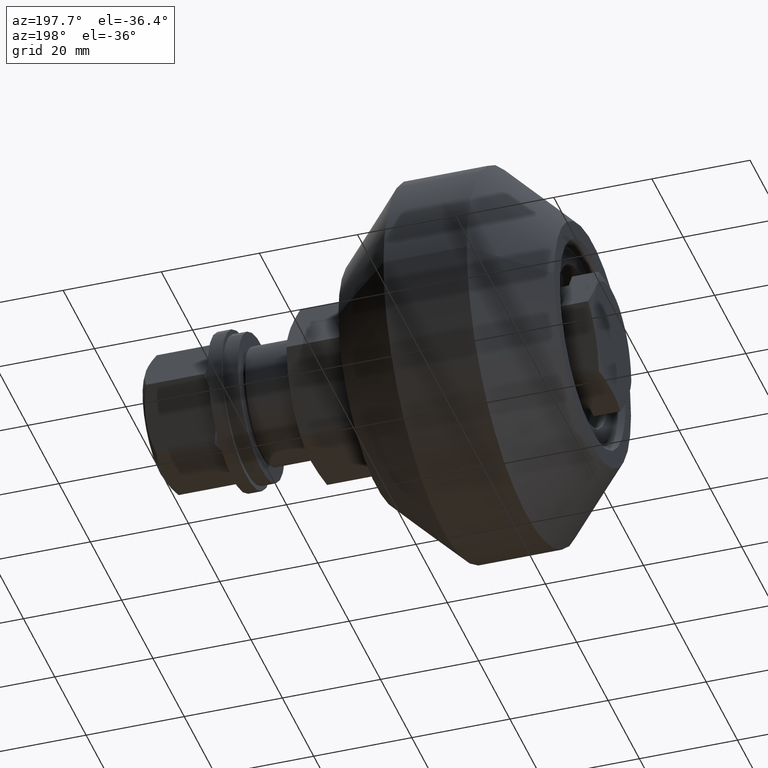
[diagram: clean part render]
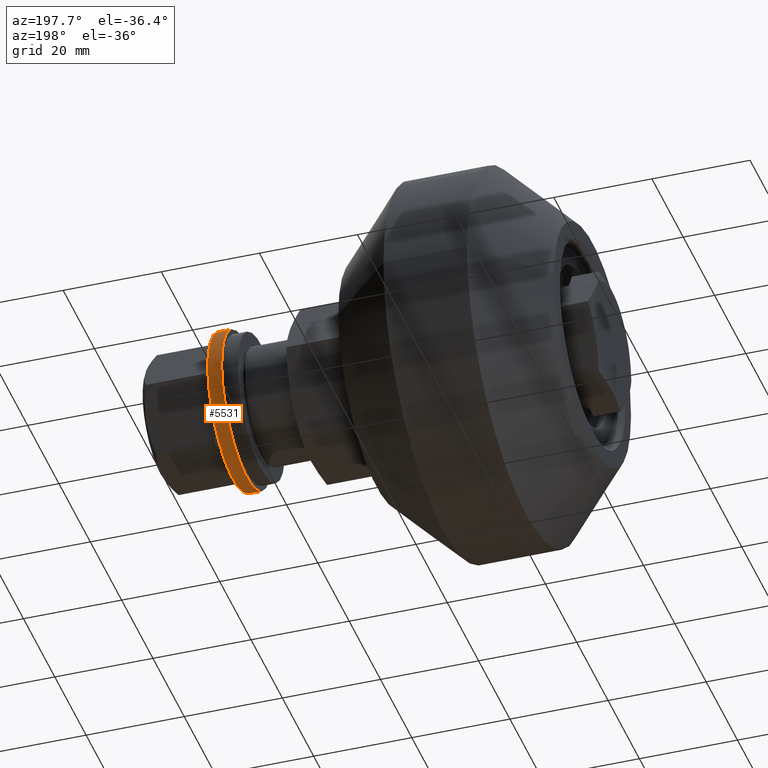
[diagram: same view with one face highlighted and labeled with its STEP entity id]
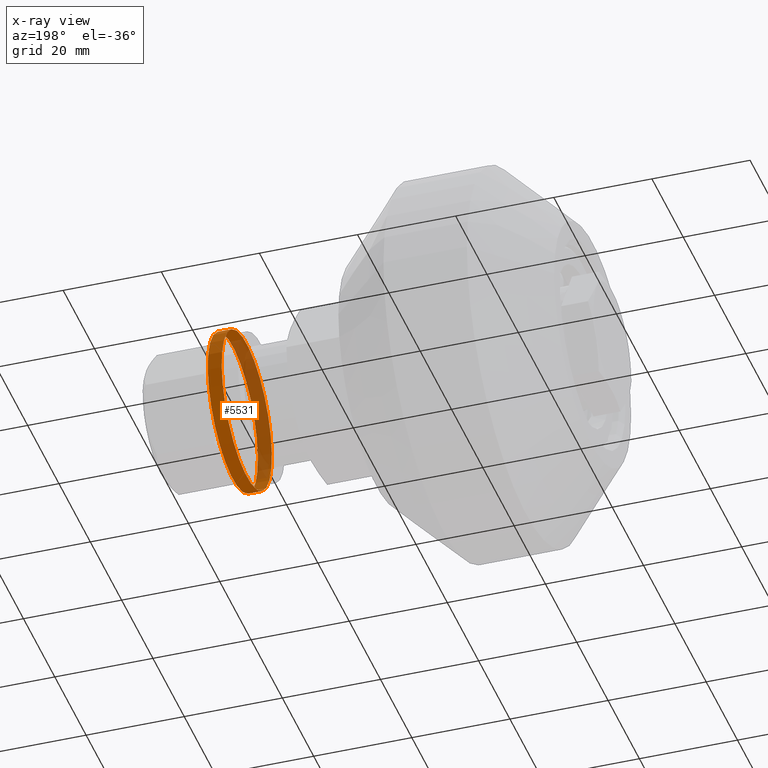
[diagram: x-ray of the same camera — body ghosted, the highlighted face saturated]
A machine part, auxiliary view. The second image highlights one B-rep face of the part: STEP entity #5531.
The next image is the same camera in x-ray: the body ghosted, the highlighted face saturated — about 42% of this face is hidden behind the body in this view.
In plain terms, the highlighted cylindrical surface (bore or boss wall) has radius 16 mm, axis along (-1, -0, 0).
Its self-contained STEP definition (entity closure, byte-faithful):
#579=CYLINDRICAL_SURFACE('',#6223,16.);
#794=FACE_OUTER_BOUND('',#1095,.T.);
#1095=EDGE_LOOP('',(#4751,#4752,#4753,#4754));
#1488=LINE('',#9456,#1806);
#1806=VECTOR('',#7506,16.);
#1993=CIRCLE('',#6155,16.);
#2057=CIRCLE('',#6224,16.);
#2555=VERTEX_POINT('',#9365);
#2563=VERTEX_POINT('',#9454);
#3256=EDGE_CURVE('',#2555,#2555,#1993,.T.);
#3328=EDGE_CURVE('',#2563,#2563,#2057,.T.);
#3329=EDGE_CURVE('',#2563,#2555,#1488,.T.);
#4751=ORIENTED_EDGE('',*,*,#3328,.F.);
#4752=ORIENTED_EDGE('',*,*,#3329,.T.);
#4753=ORIENTED_EDGE('',*,*,#3256,.T.);
#4754=ORIENTED_EDGE('',*,*,#3329,.F.);
#5531=ADVANCED_FACE('',(#794),#579,.T.);
#6155=AXIS2_PLACEMENT_3D('',#9366,#7360,#7361);
#6223=AXIS2_PLACEMENT_3D('',#9453,#7502,#7503);
#6224=AXIS2_PLACEMENT_3D('',#9455,#7504,#7505);
#7360=DIRECTION('center_axis',(0.,-1.,0.));
#7361=DIRECTION('ref_axis',(1.,0.,0.));
#7502=DIRECTION('center_axis',(0.,-1.,0.));
#7503=DIRECTION('ref_axis',(1.,0.,0.));
#7504=DIRECTION('center_axis',(0.,-1.,0.));
#7505=DIRECTION('ref_axis',(1.,0.,0.));
#7506=DIRECTION('',(0.,1.,0.));
#9365=CARTESIAN_POINT('',(-16.,2.83649802373922,-1.95943487863577E-15));
#9366=CARTESIAN_POINT('Origin',(0.,2.83649802373922,0.));
#9453=CARTESIAN_POINT('Origin',(0.,1.41824901186961,0.));
#9454=CARTESIAN_POINT('',(-16.,0.,-1.95943487863577E-15));
#9455=CARTESIAN_POINT('Origin',(0.,0.,0.));
#9456=CARTESIAN_POINT('',(-16.,1.41824901186961,-1.95943487863577E-15));